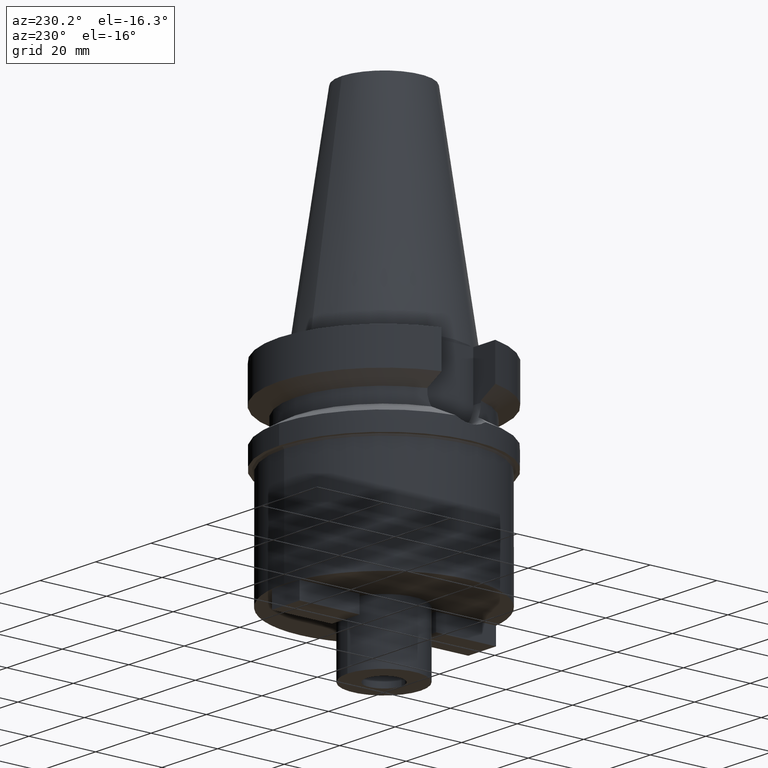
[diagram: clean part render]
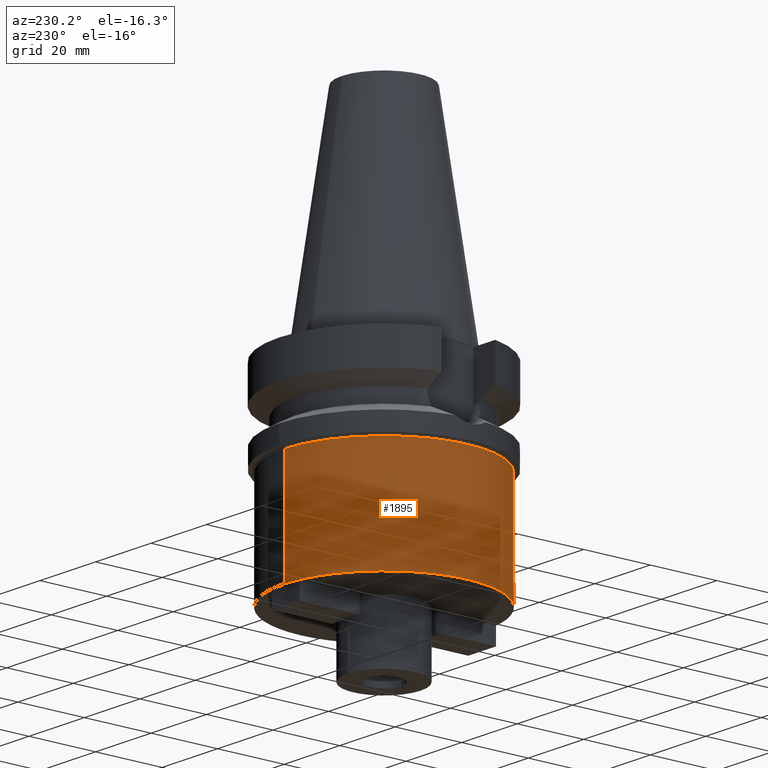
[diagram: same view with one face highlighted and labeled with its STEP entity id]
A machine part, auxiliary view. The second image highlights one B-rep face of the part: STEP entity #1895.
In plain terms, the highlighted cylindrical surface (partial cylindrical patch) has radius 30 mm, axis along (0, 0, -1).
Its self-contained STEP definition (entity closure, byte-faithful):
#667=CARTESIAN_POINT('',(0.E0,0.E0,-2.75E1));
#668=DIRECTION('',(0.E0,0.E0,-1.E0));
#669=DIRECTION('',(0.E0,-1.E0,0.E0));
#670=AXIS2_PLACEMENT_3D('',#667,#668,#669);
#690=DIRECTION('',(0.E0,0.E0,-1.E0));
#691=VECTOR('',#690,3.25E1);
#692=CARTESIAN_POINT('',(0.E0,3.E1,-2.75E1));
#693=LINE('',#692,#691);
#697=DIRECTION('',(0.E0,0.E0,-1.E0));
#698=VECTOR('',#697,3.25E1);
#699=CARTESIAN_POINT('',(0.E0,-3.E1,-2.75E1));
#700=LINE('',#699,#698);
#712=CARTESIAN_POINT('',(0.E0,2.113372981289E-14,-6.E1));
#713=DIRECTION('',(0.E0,0.E0,1.E0));
#714=DIRECTION('',(0.E0,1.E0,0.E0));
#715=AXIS2_PLACEMENT_3D('',#712,#713,#714);
#1268=CARTESIAN_POINT('',(0.E0,-3.E1,-6.E1));
#1269=CARTESIAN_POINT('',(0.E0,3.E1,-6.E1));
#1270=VERTEX_POINT('',#1268);
#1271=VERTEX_POINT('',#1269);
#1288=CARTESIAN_POINT('',(0.E0,3.E1,-2.75E1));
#1289=VERTEX_POINT('',#1288);
#1290=CARTESIAN_POINT('',(0.E0,-3.E1,-2.75E1));
#1291=VERTEX_POINT('',#1290);
#1883=CARTESIAN_POINT('',(0.E0,2.113372981289E-14,7.257E1));
#1884=DIRECTION('',(0.E0,0.E0,-1.E0));
#1885=DIRECTION('',(0.E0,-1.E0,0.E0));
#1886=AXIS2_PLACEMENT_3D('',#1883,#1884,#1885);
#1887=CYLINDRICAL_SURFACE('',#1886,3.E1);
#1888=ORIENTED_EDGE('',*,*,#1873,.F.);
#1889=ORIENTED_EDGE('',*,*,#1850,.F.);
#1890=ORIENTED_EDGE('',*,*,#1877,.T.);
#1892=ORIENTED_EDGE('',*,*,#1891,.F.);
#1893=EDGE_LOOP('',(#1888,#1889,#1890,#1892));
#1894=FACE_OUTER_BOUND('',#1893,.F.);
#671=CIRCLE('',#670,3.E1);
#716=CIRCLE('',#715,3.E1);
#1850=EDGE_CURVE('',#1291,#1289,#671,.T.);
#1873=EDGE_CURVE('',#1289,#1271,#693,.T.);
#1877=EDGE_CURVE('',#1291,#1270,#700,.T.);
#1891=EDGE_CURVE('',#1271,#1270,#716,.T.);
#1895=ADVANCED_FACE('',(#1894),#1887,.T.);